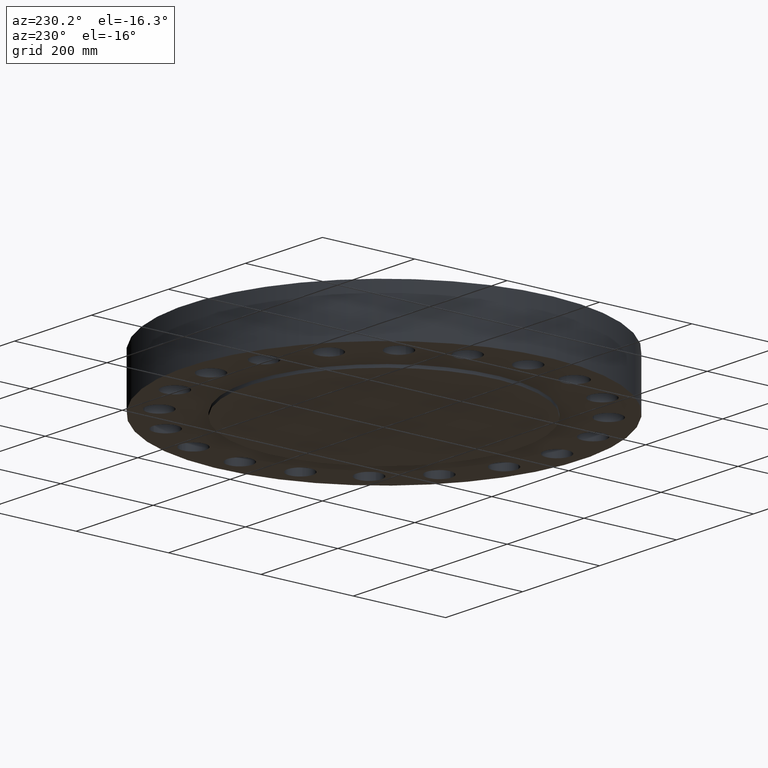
[diagram: clean part render]
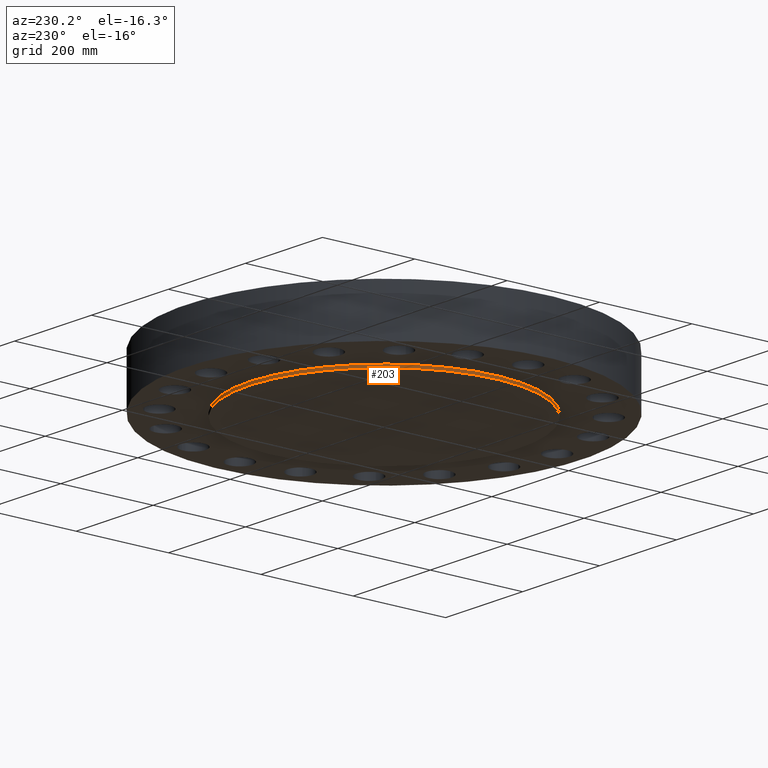
[diagram: same view with one face highlighted and labeled with its STEP entity id]
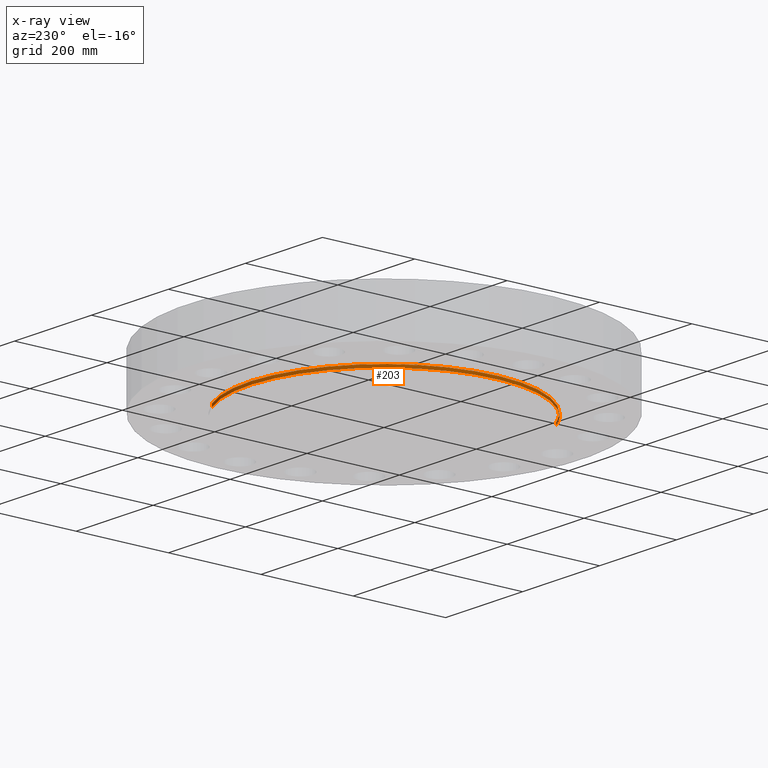
[diagram: x-ray of the same camera — body ghosted, the highlighted face saturated]
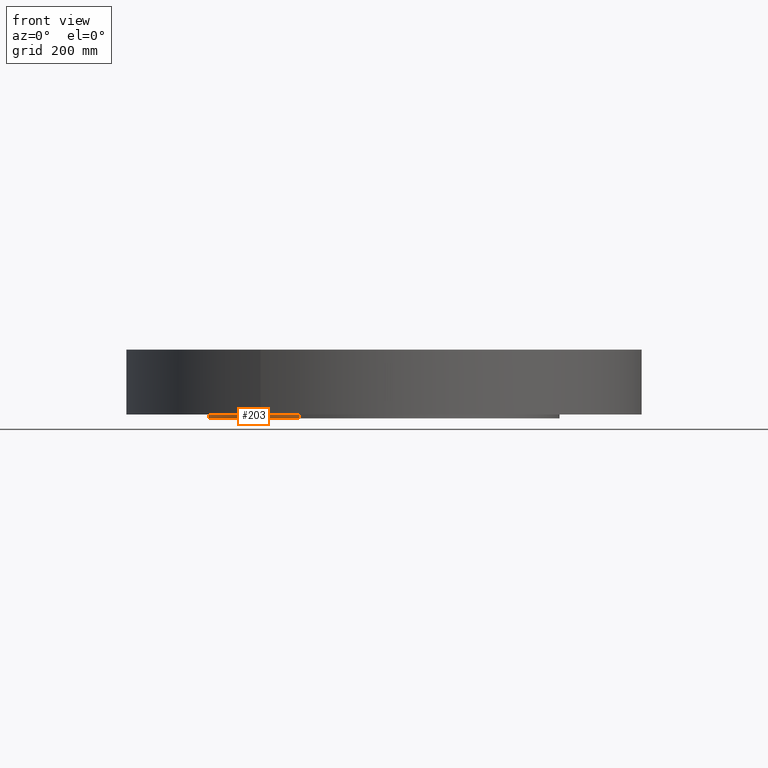
[diagram: same view with one face highlighted and labeled with its STEP entity id]
A machine part, auxiliary view. The second image highlights one B-rep face of the part: STEP entity #203.
The next image is the same camera in x-ray: the body ghosted, the highlighted face saturated — about 0% of this face is hidden behind the body in this view.
A second angle (front view) of the same face is appended — the face is thin or edge-on in the first view.
In plain terms, the highlighted cylindrical surface (partial cylindrical patch) has radius 292.1 mm, axis along (0, 0, -1).
Its self-contained STEP definition (entity closure, byte-faithful):
#165=AXIS2_PLACEMENT_3D('Circle Axis2P3D',#163,#164,$) ;
#176=AXIS2_PLACEMENT_3D('Cylinder Axis2P3D',#173,#174,#175) ;
#187=AXIS2_PLACEMENT_3D('Circle Axis2P3D',#185,#186,$) ;
#158=CARTESIAN_POINT('Vertex',(5.51339369397,10.0921994618,-0.250000000001)) ;
#160=CARTESIAN_POINT('Vertex',(-5.51339369397,-10.0921994618,-0.250000000001)) ;
#163=CARTESIAN_POINT('Axis2P3D Location',(0.,0.,-0.250000000001)) ;
#173=CARTESIAN_POINT('Axis2P3D Location',(0.,0.,2.00000000001)) ;
#178=CARTESIAN_POINT('Line Origine',(-5.51339369397,-10.0921994618,-0.125)) ;
#182=CARTESIAN_POINT('Vertex',(-5.51339369397,-10.0921994618,1.39870617276E-015)) ;
#185=CARTESIAN_POINT('Axis2P3D Location',(0.,0.,1.39870617276E-015)) ;
#189=CARTESIAN_POINT('Vertex',(5.51339369397,10.0921994618,1.39870617276E-015)) ;
#192=CARTESIAN_POINT('Line Origine',(5.51339369397,10.0921994618,-0.125)) ;
#164=DIRECTION('Axis2P3D Direction',(0.,0.,-0.0393700787402)) ;
#174=DIRECTION('Axis2P3D Direction',(0.,0.,-0.0393700787402)) ;
#175=DIRECTION('Axis2P3D XDirection',(0.0188750212049,0.0345504945626,0.)) ;
#179=DIRECTION('Vector Direction',(0.,0.,-0.0393700787402)) ;
#186=DIRECTION('Axis2P3D Direction',(0.,0.,-0.0393700787402)) ;
#193=DIRECTION('Vector Direction',(0.,0.,-0.0393700787402)) ;
#180=VECTOR('Line Direction',#179,0.0393700787402) ;
#194=VECTOR('Line Direction',#193,0.0393700787402) ;
#198=ORIENTED_EDGE('',*,*,#167,.F.) ;
#199=ORIENTED_EDGE('',*,*,#184,.T.) ;
#200=ORIENTED_EDGE('',*,*,#191,.T.) ;
#201=ORIENTED_EDGE('',*,*,#196,.F.) ;
#203=ADVANCED_FACE('PartBody',(#202),#177,.T.) ;
#166=CIRCLE('generated circle',#165,11.5) ;
#188=CIRCLE('generated circle',#187,11.5) ;
#177=CYLINDRICAL_SURFACE('generated cylinder',#176,11.5) ;
#167=EDGE_CURVE('',#161,#159,#166,.T.) ;
#184=EDGE_CURVE('',#161,#183,#181,.F.) ;
#191=EDGE_CURVE('',#183,#190,#188,.T.) ;
#196=EDGE_CURVE('',#159,#190,#195,.F.) ;
#197=EDGE_LOOP('',(#198,#199,#200,#201)) ;
#202=FACE_OUTER_BOUND('',#197,.T.) ;
#181=LINE('Line',#178,#180) ;
#195=LINE('Line',#192,#194) ;
#159=VERTEX_POINT('',#158) ;
#161=VERTEX_POINT('',#160) ;
#183=VERTEX_POINT('',#182) ;
#190=VERTEX_POINT('',#189) ;